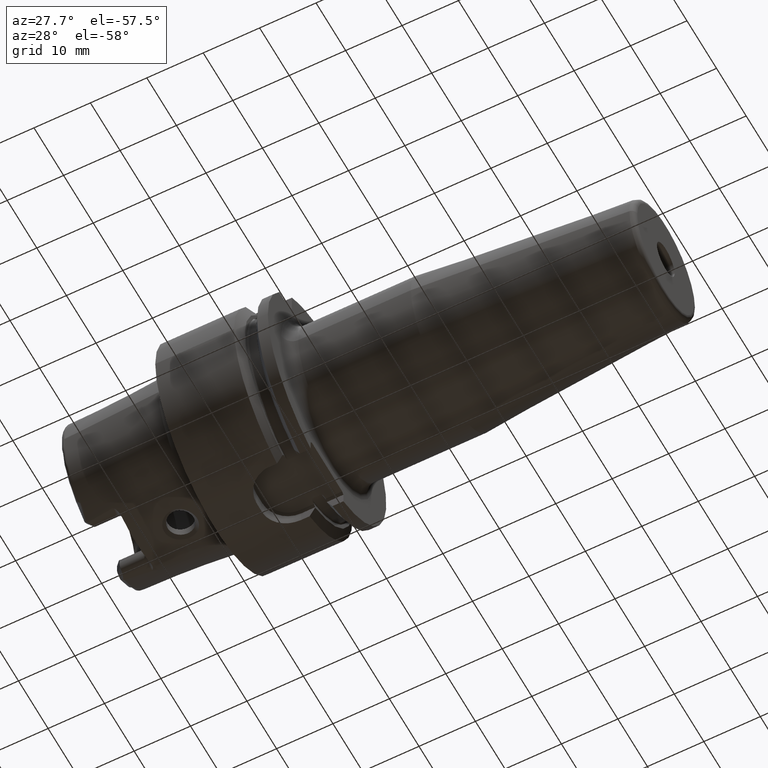
[diagram: clean part render]
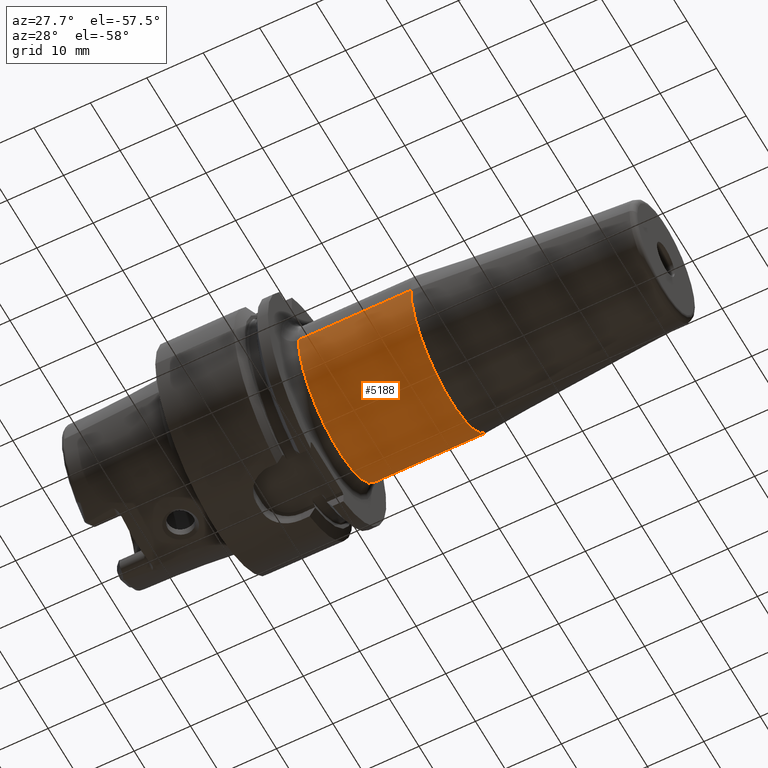
[diagram: same view with one face highlighted and labeled with its STEP entity id]
A machine part, auxiliary view. The second image highlights one B-rep face of the part: STEP entity #5188.
In plain terms, the highlighted cylindrical surface (partial cylindrical patch) has radius 13.5 mm, axis along (1, 0, 0).
Its self-contained STEP definition (entity closure, byte-faithful):
#1861=CARTESIAN_POINT('',(2.195E1,0.E0,0.E0));
#1862=DIRECTION('',(1.E0,0.E0,0.E0));
#1863=DIRECTION('',(0.E0,-1.E0,0.E0));
#1864=AXIS2_PLACEMENT_3D('',#1861,#1862,#1863);
#1866=DIRECTION('',(-1.E0,0.E0,-1.878068692007E-14));
#1867=VECTOR('',#1866,1.993138579148E1);
#1868=CARTESIAN_POINT('',(4.188138579148E1,-1.35E1,0.E0));
#1869=LINE('',#1868,#1867);
#1870=CARTESIAN_POINT('',(4.188138579148E1,0.E0,0.E0));
#1871=DIRECTION('',(-1.E0,0.E0,0.E0));
#1872=DIRECTION('',(0.E0,1.E0,0.E0));
#1873=AXIS2_PLACEMENT_3D('',#1870,#1871,#1872);
#1875=DIRECTION('',(-1.E0,0.E0,1.868388147799E-14));
#1876=VECTOR('',#1875,1.993138579148E1);
#1877=CARTESIAN_POINT('',(4.188138579148E1,1.35E1,0.E0));
#1878=LINE('',#1877,#1876);
#3160=CARTESIAN_POINT('',(4.188138579148E1,1.35E1,0.E0));
#3161=CARTESIAN_POINT('',(4.188138579148E1,-1.35E1,0.E0));
#3162=VERTEX_POINT('',#3160);
#3163=VERTEX_POINT('',#3161);
#3168=CARTESIAN_POINT('',(2.195E1,-1.35E1,0.E0));
#3169=CARTESIAN_POINT('',(2.195E1,1.35E1,0.E0));
#3170=VERTEX_POINT('',#3168);
#3171=VERTEX_POINT('',#3169);
#5176=CARTESIAN_POINT('',(1.69475E1,0.E0,0.E0));
#5177=DIRECTION('',(1.E0,0.E0,0.E0));
#5178=DIRECTION('',(0.E0,-1.E0,0.E0));
#5179=AXIS2_PLACEMENT_3D('',#5176,#5177,#5178);
#5180=CYLINDRICAL_SURFACE('',#5179,1.35E1);
#5181=ORIENTED_EDGE('',*,*,#5141,.F.);
#5182=ORIENTED_EDGE('',*,*,#5171,.F.);
#5184=ORIENTED_EDGE('',*,*,#5183,.F.);
#5185=ORIENTED_EDGE('',*,*,#5167,.T.);
#5186=EDGE_LOOP('',(#5181,#5182,#5184,#5185));
#5187=FACE_OUTER_BOUND('',#5186,.F.);
#5188=ADVANCED_FACE('',(#5187),#5180,.T.);
#1865=CIRCLE('',#1864,1.35E1);
#1874=CIRCLE('',#1873,1.35E1);
#5141=EDGE_CURVE('',#3170,#3171,#1865,.T.);
#5167=EDGE_CURVE('',#3162,#3171,#1878,.T.);
#5171=EDGE_CURVE('',#3163,#3170,#1869,.T.);
#5183=EDGE_CURVE('',#3162,#3163,#1874,.T.);